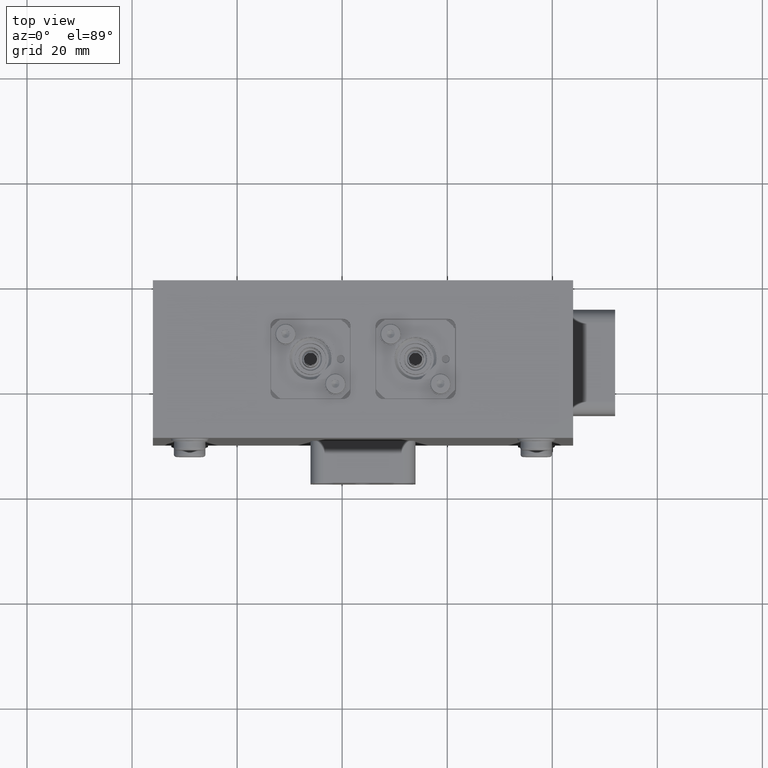
[diagram: clean part render]
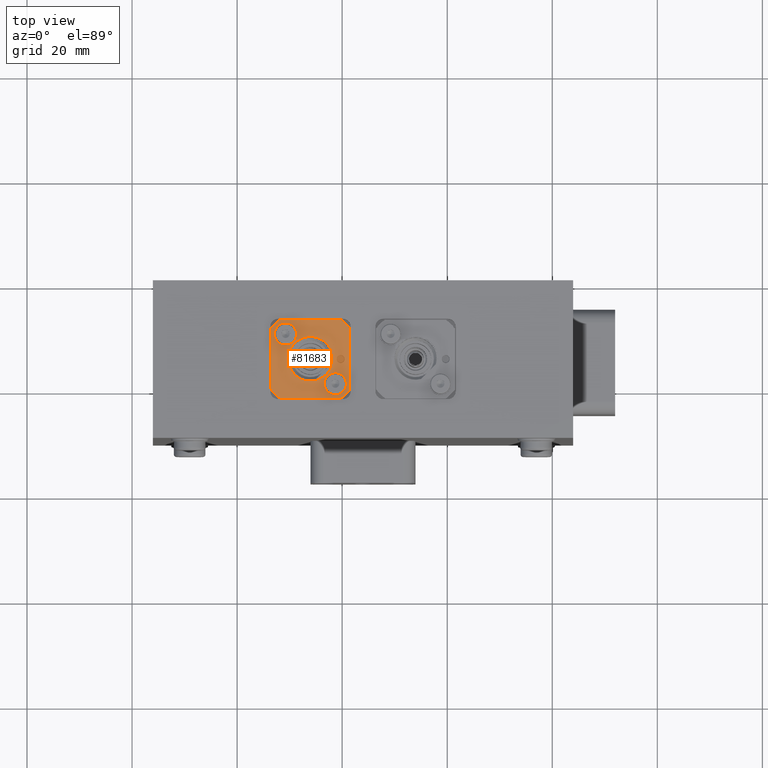
[diagram: same view with one face highlighted and labeled with its STEP entity id]
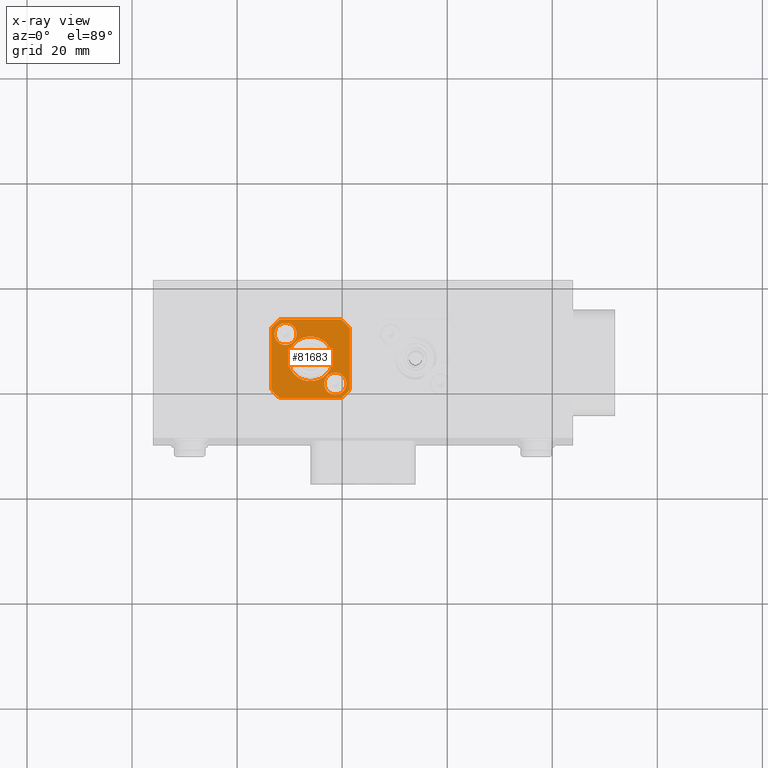
[diagram: x-ray of the same camera — body ghosted, the highlighted face saturated]
A machine part, top view. The second image highlights one B-rep face of the part: STEP entity #81683.
The next image is the same camera in x-ray: the body ghosted, the highlighted face saturated — about 0% of this face is hidden behind the body in this view.
In plain terms, the highlighted planar face has unit normal (0, 0, 1).
Its self-contained STEP definition (entity closure, byte-faithful):
#47551 = CARTESIAN_POINT ( 'NONE',  ( 0.0000000000000000000, 0.0000000000000000000, 2.000000000000001800 ) ) ;
#47574 = CIRCLE ( 'NONE', #47579, 4.250000000000000000 ) ;
#47579 = AXIS2_PLACEMENT_3D ( 'NONE', #47551, #47613, #47612 ) ;
#47612 = DIRECTION ( 'NONE',  ( 1.000000000000000000, 0.0000000000000000000, 0.0000000000000000000 ) ) ;
#47613 = DIRECTION ( 'NONE',  ( -0.0000000000000000000, -0.0000000000000000000, -1.000000000000000000 ) ) ;
#47685 = AXIS2_PLACEMENT_3D ( 'NONE', #47757, #47738, #47737 ) ;
#47702 = CIRCLE ( 'NONE', #47685, 2.100000000000000100 ) ;
#47737 = DIRECTION ( 'NONE',  ( -1.000000000000000000, 0.0000000000000000000, 0.0000000000000000000 ) ) ;
#47738 = DIRECTION ( 'NONE',  ( 0.0000000000000000000, 0.0000000000000000000, -1.000000000000000000 ) ) ;
#47757 = CARTESIAN_POINT ( 'NONE',  ( -4.737615433949845700, 4.737615433949840400, 1.999999999999974000 ) ) ;
#47781 = CIRCLE ( 'NONE', #47813, 2.100000000000000100 ) ;
#47792 = CARTESIAN_POINT ( 'NONE',  ( 7.500000000000020400, -5.830951894845300700, 2.000000000000015500 ) ) ;
#47804 = DIRECTION ( 'NONE',  ( -1.000000000000000000, 0.0000000000000000000, 0.0000000000000000000 ) ) ;
#47805 = DIRECTION ( 'NONE',  ( 0.0000000000000000000, 0.0000000000000000000, -1.000000000000000000 ) ) ;
#47806 = CARTESIAN_POINT ( 'NONE',  ( 4.737615433949862600, -4.737615433949875100, 2.000000000000015500 ) ) ;
#47813 = AXIS2_PLACEMENT_3D ( 'NONE', #47806, #47805, #47804 ) ;
#47920 = CARTESIAN_POINT ( 'NONE',  ( 5.830951894845316700, -7.500000000000000000, 2.000000000000015500 ) ) ;
#47927 = CARTESIAN_POINT ( 'NONE',  ( 0.0000000000000000000, 0.0000000000000000000, 2.000000000000001800 ) ) ;
#47943 = DIRECTION ( 'NONE',  ( 1.000000000000000000, 0.0000000000000000000, 0.0000000000000000000 ) ) ;
#47944 = DIRECTION ( 'NONE',  ( -0.0000000000000000000, -0.0000000000000000000, -1.000000000000000000 ) ) ;
#47953 = CIRCLE ( 'NONE', #47954, 9.500000000000000000 ) ;
#47954 = AXIS2_PLACEMENT_3D ( 'NONE', #47927, #47944, #47943 ) ;
#47957 = DIRECTION ( 'NONE',  ( -0.0000000000000000000, -1.000000000000000000, -0.0000000000000000000 ) ) ;
#47958 = VECTOR ( 'NONE', #47957, 1000.000000000000000 ) ;
#47959 = CARTESIAN_POINT ( 'NONE',  ( 7.500000000000034600, 7.500000000000001800, 2.000000000000015500 ) ) ;
#47960 = LINE ( 'NONE', #47959, #47958 ) ;
#47974 = PLANE ( 'NONE',  #47985 ) ;
#47975 = FACE_BOUND ( 'NONE', #81616, .T. ) ;
#47985 = AXIS2_PLACEMENT_3D ( 'NONE', #48007, #48006, #48005 ) ;
#47986 = FACE_OUTER_BOUND ( 'NONE', #81758, .T. ) ;
#47988 = CARTESIAN_POINT ( 'NONE',  ( -5.830951894845278500, -7.500000000000007100, 2.000000000000001800 ) ) ;
#47989 = FACE_BOUND ( 'NONE', #81689, .T. ) ;
#47992 = FACE_BOUND ( 'NONE', #81697, .T. ) ;
#48001 = CARTESIAN_POINT ( 'NONE',  ( 0.0000000000000000000, 0.0000000000000000000, 2.000000000000001800 ) ) ;
#48002 = CARTESIAN_POINT ( 'NONE',  ( 5.830951894845302500, 7.499999999999998200, 2.000000000000001800 ) ) ;
#48003 = AXIS2_PLACEMENT_3D ( 'NONE', #48031, #48030, #48029 ) ;
#48004 = CARTESIAN_POINT ( 'NONE',  ( 7.500000000000020400, 5.830951894845276800, 2.000000000000015500 ) ) ;
#48005 = DIRECTION ( 'NONE',  ( 1.000000000000000000, 0.0000000000000000000, 0.0000000000000000000 ) ) ;
#48006 = DIRECTION ( 'NONE',  ( 0.0000000000000000000, 0.0000000000000000000, 1.000000000000000000 ) ) ;
#48007 = CARTESIAN_POINT ( 'NONE',  ( 0.0000000000000000000, 0.0000000000000000000, 2.000000000000001800 ) ) ;
#48008 = CIRCLE ( 'NONE', #48021, 9.500000000000000000 ) ;
#48021 = AXIS2_PLACEMENT_3D ( 'NONE', #48001, #48046, #48045 ) ;
#48027 = AXIS2_PLACEMENT_3D ( 'NONE', #48068, #48058, #48102 ) ;
#48029 = DIRECTION ( 'NONE',  ( 1.000000000000000000, 0.0000000000000000000, 0.0000000000000000000 ) ) ;
#48030 = DIRECTION ( 'NONE',  ( -0.0000000000000000000, -0.0000000000000000000, -1.000000000000000000 ) ) ;
#48031 = CARTESIAN_POINT ( 'NONE',  ( 0.0000000000000000000, 0.0000000000000000000, 2.000000000000001800 ) ) ;
#48033 = DIRECTION ( 'NONE',  ( 0.0000000000000000000, 1.000000000000000000, 0.0000000000000000000 ) ) ;
#48034 = VECTOR ( 'NONE', #48033, 1000.000000000000000 ) ;
#48035 = CARTESIAN_POINT ( 'NONE',  ( -7.499999999999978700, -7.500000000000013300, 1.999999999999974000 ) ) ;
#48040 = LINE ( 'NONE', #48035, #48034 ) ;
#48041 = CIRCLE ( 'NONE', #48003, 9.500000000000000000 ) ;
#48045 = DIRECTION ( 'NONE',  ( 1.000000000000000000, 5.329070518200750600E-015, 0.0000000000000000000 ) ) ;
#48046 = DIRECTION ( 'NONE',  ( -0.0000000000000000000, -0.0000000000000000000, -1.000000000000000000 ) ) ;
#48058 = DIRECTION ( 'NONE',  ( -0.0000000000000000000, -0.0000000000000000000, -1.000000000000000000 ) ) ;
#48059 = CIRCLE ( 'NONE', #48027, 9.500000000000000000 ) ;
#48068 = CARTESIAN_POINT ( 'NONE',  ( 0.0000000000000000000, 0.0000000000000000000, 2.000000000000001800 ) ) ;
#48079 = CARTESIAN_POINT ( 'NONE',  ( -5.830951894845282100, 7.499999999999994700, 1.999999999999974000 ) ) ;
#48092 = VECTOR ( 'NONE', #48129, 1000.000000000000000 ) ;
#48095 = DIRECTION ( 'NONE',  ( 1.000000000000000000, 0.0000000000000000000, 0.0000000000000000000 ) ) ;
#48096 = VECTOR ( 'NONE', #48095, 1000.000000000000000 ) ;
#48099 = CARTESIAN_POINT ( 'NONE',  ( -7.499999999999982200, 7.499999999999998200, 1.999999999999974000 ) ) ;
#48100 = LINE ( 'NONE', #48099, #48096 ) ;
#48102 = DIRECTION ( 'NONE',  ( 1.000000000000000000, 7.105427357601001900E-015, 0.0000000000000000000 ) ) ;
#48129 = DIRECTION ( 'NONE',  ( -1.000000000000000000, -0.0000000000000000000, -0.0000000000000000000 ) ) ;
#48148 = CARTESIAN_POINT ( 'NONE',  ( -7.499999999999996400, 5.830951894845283900, 1.999999999999974000 ) ) ;
#48371 = CARTESIAN_POINT ( 'NONE',  ( 7.500000000000020400, -7.500000000000000000, 2.000000000000015500 ) ) ;
#48372 = LINE ( 'NONE', #48371, #48092 ) ;
#48416 = CARTESIAN_POINT ( 'NONE',  ( -7.499999999999996400, -5.830951894845305200, 1.999999999999974000 ) ) ;
#48938 = CARTESIAN_POINT ( 'NONE',  ( -2.637615433949845200, 4.737615433949840400, 1.999999999999974000 ) ) ;
#48960 = AXIS2_PLACEMENT_3D ( 'NONE', #49019, #49011, #49010 ) ;
#49010 = DIRECTION ( 'NONE',  ( -1.000000000000000000, 0.0000000000000000000, 0.0000000000000000000 ) ) ;
#49011 = DIRECTION ( 'NONE',  ( 0.0000000000000000000, 0.0000000000000000000, -1.000000000000000000 ) ) ;
#49019 = CARTESIAN_POINT ( 'NONE',  ( -4.737615433949845700, 4.737615433949840400, 1.999999999999974000 ) ) ;
#49021 = CIRCLE ( 'NONE', #48960, 2.100000000000000100 ) ;
#49100 = AXIS2_PLACEMENT_3D ( 'NONE', #49141, #49140, #49139 ) ;
#49107 = AXIS2_PLACEMENT_3D ( 'NONE', #49145, #49144, #49133 ) ;
#49133 = DIRECTION ( 'NONE',  ( -1.000000000000000000, 0.0000000000000000000, 0.0000000000000000000 ) ) ;
#49134 = CARTESIAN_POINT ( 'NONE',  ( -4.250000000000000000, 5.204748896376250700E-016, 2.000000000000001800 ) ) ;
#49138 = CIRCLE ( 'NONE', #49107, 2.100000000000000100 ) ;
#49139 = DIRECTION ( 'NONE',  ( 1.000000000000000000, 0.0000000000000000000, 0.0000000000000000000 ) ) ;
#49140 = DIRECTION ( 'NONE',  ( -0.0000000000000000000, -0.0000000000000000000, -1.000000000000000000 ) ) ;
#49141 = CARTESIAN_POINT ( 'NONE',  ( 0.0000000000000000000, 0.0000000000000000000, 2.000000000000001800 ) ) ;
#49142 = CARTESIAN_POINT ( 'NONE',  ( 2.637615433949862500, -4.737615433949875100, 2.000000000000015500 ) ) ;
#49144 = DIRECTION ( 'NONE',  ( 0.0000000000000000000, 0.0000000000000000000, -1.000000000000000000 ) ) ;
#49145 = CARTESIAN_POINT ( 'NONE',  ( 4.737615433949862600, -4.737615433949875100, 2.000000000000015500 ) ) ;
#49148 = CARTESIAN_POINT ( 'NONE',  ( 4.250000000000000000, 0.0000000000000000000, 2.000000000000001800 ) ) ;
#49151 = CIRCLE ( 'NONE', #49100, 4.250000000000000000 ) ;
#49180 = CARTESIAN_POINT ( 'NONE',  ( 6.837615433949863200, -4.737615433949875100, 2.000000000000015500 ) ) ;
#49183 = CARTESIAN_POINT ( 'NONE',  ( -6.837615433949845400, 4.737615433949840400, 1.999999999999974000 ) ) ;
#81490 = EDGE_CURVE ( 'NONE', #82096, #82084, #47574, .T. ) ;
#81549 = EDGE_CURVE ( 'NONE', #82026, #82107, #47702, .T. ) ;
#81579 = EDGE_CURVE ( 'NONE', #82114, #82105, #47781, .T. ) ;
#81587 = ORIENTED_EDGE ( 'NONE', *, *, #81687, .T. ) ;
#81593 = VERTEX_POINT ( 'NONE', #47792 ) ;
#81607 = ORIENTED_EDGE ( 'NONE', *, *, #81579, .F. ) ;
#81616 = EDGE_LOOP ( 'NONE', ( #81632, #81692 ) ) ;
#81619 = ORIENTED_EDGE ( 'NONE', *, *, #82092, .F. ) ;
#81632 = ORIENTED_EDGE ( 'NONE', *, *, #82086, .F. ) ;
#81642 = VERTEX_POINT ( 'NONE', #47920 ) ;
#81645 = EDGE_CURVE ( 'NONE', #81696, #81593, #47960, .T. ) ;
#81653 = ORIENTED_EDGE ( 'NONE', *, *, #81645, .T. ) ;
#81654 = EDGE_CURVE ( 'NONE', #81593, #81642, #47953, .T. ) ;
#81660 = ORIENTED_EDGE ( 'NONE', *, *, #81654, .T. ) ;
#81670 = ORIENTED_EDGE ( 'NONE', *, *, #81811, .T. ) ;
#81680 = ORIENTED_EDGE ( 'NONE', *, *, #81549, .F. ) ;
#81683 = ADVANCED_FACE ( 'NONE', ( #47975, #47989, #47992, #47986 ), #47974, .F. ) ;
#81687 = EDGE_CURVE ( 'NONE', #81694, #81696, #48008, .T. ) ;
#81689 = EDGE_LOOP ( 'NONE', ( #81619, #81607 ) ) ;
#81692 = ORIENTED_EDGE ( 'NONE', *, *, #81490, .F. ) ;
#81694 = VERTEX_POINT ( 'NONE', #48002 ) ;
#81696 = VERTEX_POINT ( 'NONE', #48004 ) ;
#81697 = EDGE_LOOP ( 'NONE', ( #81757, #81680 ) ) ;
#81703 = VERTEX_POINT ( 'NONE', #47988 ) ;
#81705 = ORIENTED_EDGE ( 'NONE', *, *, #81718, .T. ) ;
#81715 = ORIENTED_EDGE ( 'NONE', *, *, #81721, .T. ) ;
#81718 = EDGE_CURVE ( 'NONE', #81816, #81812, #48040, .T. ) ;
#81721 = EDGE_CURVE ( 'NONE', #81703, #81816, #48041, .T. ) ;
#81727 = ORIENTED_EDGE ( 'NONE', *, *, #81732, .T. ) ;
#81732 = EDGE_CURVE ( 'NONE', #81812, #81753, #48059, .T. ) ;
#81734 = ORIENTED_EDGE ( 'NONE', *, *, #81737, .T. ) ;
#81737 = EDGE_CURVE ( 'NONE', #81753, #81694, #48100, .T. ) ;
#81753 = VERTEX_POINT ( 'NONE', #48079 ) ;
#81757 = ORIENTED_EDGE ( 'NONE', *, *, #82039, .F. ) ;
#81758 = EDGE_LOOP ( 'NONE', ( #81587, #81653, #81660, #81670, #81715, #81705, #81727, #81734 ) ) ;
#81811 = EDGE_CURVE ( 'NONE', #81642, #81703, #48372, .T. ) ;
#81812 = VERTEX_POINT ( 'NONE', #48148 ) ;
#81816 = VERTEX_POINT ( 'NONE', #48416 ) ;
#82026 = VERTEX_POINT ( 'NONE', #48938 ) ;
#82039 = EDGE_CURVE ( 'NONE', #82107, #82026, #49021, .T. ) ;
#82084 = VERTEX_POINT ( 'NONE', #49148 ) ;
#82086 = EDGE_CURVE ( 'NONE', #82084, #82096, #49151, .T. ) ;
#82092 = EDGE_CURVE ( 'NONE', #82105, #82114, #49138, .T. ) ;
#82096 = VERTEX_POINT ( 'NONE', #49134 ) ;
#82105 = VERTEX_POINT ( 'NONE', #49142 ) ;
#82107 = VERTEX_POINT ( 'NONE', #49183 ) ;
#82114 = VERTEX_POINT ( 'NONE', #49180 ) ;